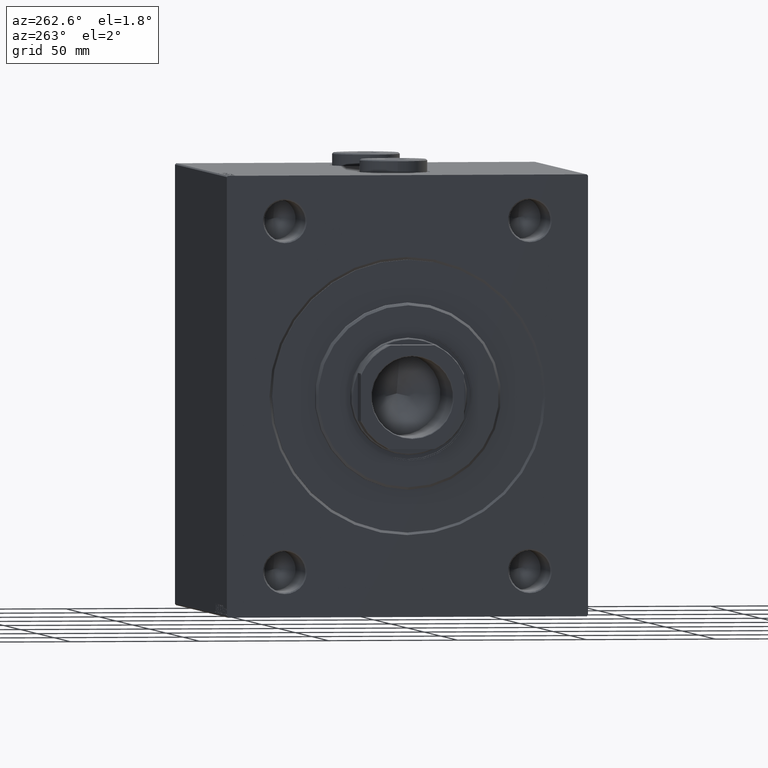
[diagram: clean part render]
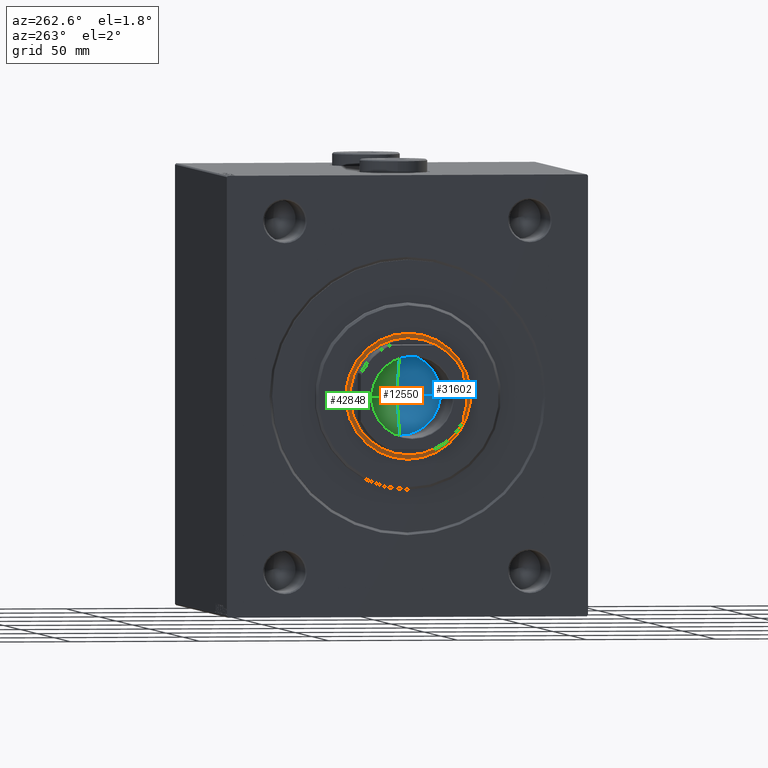
[diagram: same view with three faces highlighted in distinct colors, each labeled with its STEP entity id]
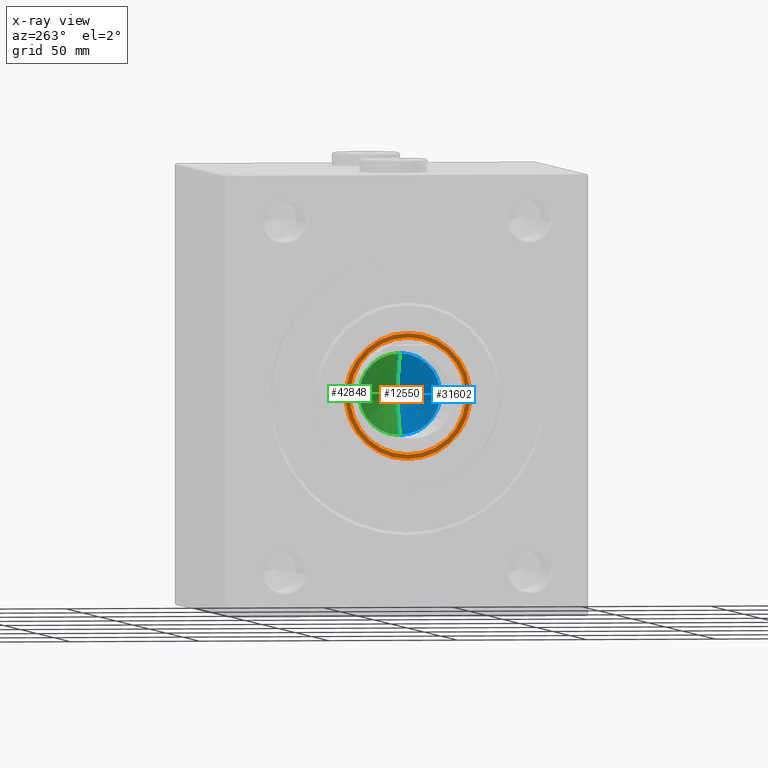
[diagram: x-ray of the same camera — body ghosted, the three highlighted faces saturated]
A machine part, auxiliary view with three faces highlighted in distinct colors.
The next image is the same camera in x-ray (body ghosted, the three faces saturated) — at least one of them is partly hidden behind the body in this view.
Their STEP definitions:

[orange] entity #12550 — the highlighted planar face has unit normal (-1, 0, 0).
#736 = ORIENTED_EDGE ( 'NONE', *, *, #41293, .T. ) ;
#1680 = ORIENTED_EDGE ( 'NONE', *, *, #15683, .F. ) ;
#2444 = CARTESIAN_POINT ( 'NONE',  ( 1.500000000000000000, 0.000000000000000000, 24.25000000000000000 ) ) ;
#3513 = DIRECTION ( 'NONE',  ( 0.000000000000000000, 0.000000000000000000, -1.000000000000000000 ) ) ;
#3679 = AXIS2_PLACEMENT_3D ( 'NONE', #15191, #22121, #33669 ) ;
#3720 = CIRCLE ( 'NONE', #10342, 22.50000000000000355 ) ;
#5304 = CIRCLE ( 'NONE', #31128, 24.25000000000000000 ) ;
#6645 = ORIENTED_EDGE ( 'NONE', *, *, #9437, .T. ) ;
#7432 = AXIS2_PLACEMENT_3D ( 'NONE', #17149, #42107, #38179 ) ;
#9437 = EDGE_CURVE ( 'NONE', #15836, #45142, #24323, .T. ) ;
#9802 = ORIENTED_EDGE ( 'NONE', *, *, #10398, .F. ) ;
#10199 = DIRECTION ( 'NONE',  ( 1.000000000000000000, 0.000000000000000000, 0.000000000000000000 ) ) ;
#10342 = AXIS2_PLACEMENT_3D ( 'NONE', #31691, #10199, #3513 ) ;
#10398 = EDGE_CURVE ( 'NONE', #33038, #40804, #3720, .T. ) ;
#11682 = DIRECTION ( 'NONE',  ( 0.000000000000000000, 0.000000000000000000, -1.000000000000000000 ) ) ;
#12550 = ADVANCED_FACE ( 'NONE', ( #28009, #24076 ), #34956, .T. ) ;
#14928 = CARTESIAN_POINT ( 'NONE',  ( 1.499999999999999556, 0.000000000000000000, 0.000000000000000000 ) ) ;
#15191 = CARTESIAN_POINT ( 'NONE',  ( 1.500000000000000000, 0.000000000000000000, 0.000000000000000000 ) ) ;
#15683 = EDGE_CURVE ( 'NONE', #40804, #33038, #36338, .T. ) ;
#15836 = VERTEX_POINT ( 'NONE', #30396 ) ;
#17048 = CARTESIAN_POINT ( 'NONE',  ( 1.500000000000000000, 0.000000000000000000, 0.000000000000000000 ) ) ;
#17136 = AXIS2_PLACEMENT_3D ( 'NONE', #14928, #36873, #11682 ) ;
#17149 = CARTESIAN_POINT ( 'NONE',  ( 1.500000000000000000, 0.000000000000000000, 0.000000000000000000 ) ) ;
#21382 = CARTESIAN_POINT ( 'NONE',  ( 1.499999999999999556, 2.755455298081545172E-15, 22.50000000000000355 ) ) ;
#22121 = DIRECTION ( 'NONE',  ( 1.000000000000000000, 0.000000000000000000, 0.000000000000000000 ) ) ;
#24076 = FACE_OUTER_BOUND ( 'NONE', #32888, .T. ) ;
#24323 = CIRCLE ( 'NONE', #3679, 24.25000000000000000 ) ;
#28009 = FACE_BOUND ( 'NONE', #43861, .T. ) ;
#30396 = CARTESIAN_POINT ( 'NONE',  ( 1.500000000000000000, 2.969768487932331287E-15, -24.25000000000000000 ) ) ;
#30699 = DIRECTION ( 'NONE',  ( 0.000000000000000000, 0.000000000000000000, -1.000000000000000000 ) ) ;
#31128 = AXIS2_PLACEMENT_3D ( 'NONE', #17048, #31151, #30699 ) ;
#31151 = DIRECTION ( 'NONE',  ( 1.000000000000000000, 0.000000000000000000, 0.000000000000000000 ) ) ;
#31691 = CARTESIAN_POINT ( 'NONE',  ( 1.499999999999999556, 0.000000000000000000, 0.000000000000000000 ) ) ;
#32888 = EDGE_LOOP ( 'NONE', ( #736, #6645 ) ) ;
#33038 = VERTEX_POINT ( 'NONE', #21382 ) ;
#33669 = DIRECTION ( 'NONE',  ( 0.000000000000000000, 0.000000000000000000, -1.000000000000000000 ) ) ;
#34956 = PLANE ( 'NONE',  #7432 ) ;
#36338 = CIRCLE ( 'NONE', #17136, 22.50000000000000355 ) ;
#36873 = DIRECTION ( 'NONE',  ( 1.000000000000000000, 0.000000000000000000, 0.000000000000000000 ) ) ;
#38179 = DIRECTION ( 'NONE',  ( 0.000000000000000000, 0.000000000000000000, -1.000000000000000000 ) ) ;
#40804 = VERTEX_POINT ( 'NONE', #40811 ) ;
#40811 = CARTESIAN_POINT ( 'NONE',  ( 1.499999999999999556, 0.000000000000000000, -22.50000000000000355 ) ) ;
#41293 = EDGE_CURVE ( 'NONE', #45142, #15836, #5304, .T. ) ;
#42107 = DIRECTION ( 'NONE',  ( 1.000000000000000000, 0.000000000000000000, 0.000000000000000000 ) ) ;
#43861 = EDGE_LOOP ( 'NONE', ( #1680, #9802 ) ) ;
#45142 = VERTEX_POINT ( 'NONE', #2444 ) ;

[blue] entity #31602 — the highlighted conical surface has half-angle 59 deg.
#3691 = CONICAL_SURFACE ( 'NONE', #18409, 15.74999999999999289, 1.029744258676653867 ) ;
#4033 = ORIENTED_EDGE ( 'NONE', *, *, #12092, .T. ) ;
#8184 = VECTOR ( 'NONE', #20850, 1000.000000000000000 ) ;
#10951 = ORIENTED_EDGE ( 'NONE', *, *, #18680, .T. ) ;
#11122 = AXIS2_PLACEMENT_3D ( 'NONE', #14696, #35756, #32719 ) ;
#12092 = EDGE_CURVE ( 'NONE', #23392, #12531, #40663, .T. ) ;
#12267 = DIRECTION ( 'NONE',  ( -0.000000000000000000, -0.000000000000000000, 1.000000000000000000 ) ) ;
#12489 = VERTEX_POINT ( 'NONE', #38650 ) ;
#12531 = VERTEX_POINT ( 'NONE', #23846 ) ;
#12772 = CARTESIAN_POINT ( 'NONE',  ( 15.74999999999999289, 0.000000000000000000, 106.0000000000000142 ) ) ;
#14696 = CARTESIAN_POINT ( 'NONE',  ( 0.000000000000000000, 0.000000000000000000, 106.0000000000000142 ) ) ;
#18409 = AXIS2_PLACEMENT_3D ( 'NONE', #43940, #12267, #37244 ) ;
#18680 = EDGE_CURVE ( 'NONE', #12489, #23392, #22467, .T. ) ;
#20850 = DIRECTION ( 'NONE',  ( 0.8571673007021120005, 0.000000000000000000, 0.5150380749100547106 ) ) ;
#22467 = LINE ( 'NONE', #37271, #41545 ) ;
#23392 = VERTEX_POINT ( 'NONE', #44463 ) ;
#23846 = CARTESIAN_POINT ( 'NONE',  ( 15.74999999999999289, 0.000000000000000000, 106.0000000000000142 ) ) ;
#29103 = ORIENTED_EDGE ( 'NONE', *, *, #39740, .F. ) ;
#29634 = DIRECTION ( 'NONE',  ( -0.8571673007021120005, 1.049727191138618326E-16, 0.5150380749100547106 ) ) ;
#31602 = ADVANCED_FACE ( 'NONE', ( #40240 ), #3691, .F. ) ;
#32719 = DIRECTION ( 'NONE',  ( 1.000000000000000000, 0.000000000000000000, 0.000000000000000000 ) ) ;
#35756 = DIRECTION ( 'NONE',  ( -0.000000000000000000, -0.000000000000000000, 1.000000000000000000 ) ) ;
#36816 = EDGE_LOOP ( 'NONE', ( #29103, #10951, #4033 ) ) ;
#37244 = DIRECTION ( 'NONE',  ( 1.000000000000000000, 0.000000000000000000, 0.000000000000000000 ) ) ;
#37271 = CARTESIAN_POINT ( 'NONE',  ( -15.74999999999999289, 1.928818708657080556E-15, 106.0000000000000142 ) ) ;
#38650 = CARTESIAN_POINT ( 'NONE',  ( -1.199718644317817648E-14, 0.000000000000000000, 96.53644525031593560 ) ) ;
#39740 = EDGE_CURVE ( 'NONE', #12489, #12531, #44445, .T. ) ;
#40240 = FACE_OUTER_BOUND ( 'NONE', #36816, .T. ) ;
#40663 = CIRCLE ( 'NONE', #11122, 15.74999999999999289 ) ;
#41545 = VECTOR ( 'NONE', #29634, 1000.000000000000000 ) ;
#43940 = CARTESIAN_POINT ( 'NONE',  ( 0.000000000000000000, 0.000000000000000000, 106.0000000000000142 ) ) ;
#44445 = LINE ( 'NONE', #12772, #8184 ) ;
#44463 = CARTESIAN_POINT ( 'NONE',  ( -15.74999999999999289, 1.928818708657080556E-15, 106.0000000000000142 ) ) ;

[green] entity #42848 — the highlighted conical surface has half-angle 59 deg.
#203 = DIRECTION ( 'NONE',  ( -0.000000000000000000, -0.000000000000000000, 1.000000000000000000 ) ) ;
#3762 = CARTESIAN_POINT ( 'NONE',  ( 0.000000000000000000, 0.000000000000000000, 106.0000000000000142 ) ) ;
#5337 = CONICAL_SURFACE ( 'NONE', #9015, 15.74999999999999289, 1.029744258676653867 ) ;
#6908 = CARTESIAN_POINT ( 'NONE',  ( 0.000000000000000000, 0.000000000000000000, 106.0000000000000142 ) ) ;
#8184 = VECTOR ( 'NONE', #20850, 1000.000000000000000 ) ;
#8277 = ORIENTED_EDGE ( 'NONE', *, *, #18680, .F. ) ;
#9015 = AXIS2_PLACEMENT_3D ( 'NONE', #6908, #203, #10592 ) ;
#10592 = DIRECTION ( 'NONE',  ( 1.000000000000000000, 0.000000000000000000, 0.000000000000000000 ) ) ;
#12489 = VERTEX_POINT ( 'NONE', #38650 ) ;
#12531 = VERTEX_POINT ( 'NONE', #23846 ) ;
#12772 = CARTESIAN_POINT ( 'NONE',  ( 15.74999999999999289, 0.000000000000000000, 106.0000000000000142 ) ) ;
#17127 = EDGE_CURVE ( 'NONE', #12531, #23392, #45222, .T. ) ;
#17842 = DIRECTION ( 'NONE',  ( -0.000000000000000000, -0.000000000000000000, 1.000000000000000000 ) ) ;
#18680 = EDGE_CURVE ( 'NONE', #12489, #23392, #22467, .T. ) ;
#20850 = DIRECTION ( 'NONE',  ( 0.8571673007021120005, 0.000000000000000000, 0.5150380749100547106 ) ) ;
#21088 = EDGE_LOOP ( 'NONE', ( #8277, #31027, #27619 ) ) ;
#22467 = LINE ( 'NONE', #37271, #41545 ) ;
#23392 = VERTEX_POINT ( 'NONE', #44463 ) ;
#23846 = CARTESIAN_POINT ( 'NONE',  ( 15.74999999999999289, 0.000000000000000000, 106.0000000000000142 ) ) ;
#27619 = ORIENTED_EDGE ( 'NONE', *, *, #17127, .T. ) ;
#29634 = DIRECTION ( 'NONE',  ( -0.8571673007021120005, 1.049727191138618326E-16, 0.5150380749100547106 ) ) ;
#31027 = ORIENTED_EDGE ( 'NONE', *, *, #39740, .T. ) ;
#31943 = DIRECTION ( 'NONE',  ( 1.000000000000000000, 0.000000000000000000, 0.000000000000000000 ) ) ;
#37271 = CARTESIAN_POINT ( 'NONE',  ( -15.74999999999999289, 1.928818708657080556E-15, 106.0000000000000142 ) ) ;
#38650 = CARTESIAN_POINT ( 'NONE',  ( -1.199718644317817648E-14, 0.000000000000000000, 96.53644525031593560 ) ) ;
#39740 = EDGE_CURVE ( 'NONE', #12489, #12531, #44445, .T. ) ;
#41517 = AXIS2_PLACEMENT_3D ( 'NONE', #3762, #17842, #31943 ) ;
#41545 = VECTOR ( 'NONE', #29634, 1000.000000000000000 ) ;
#42848 = ADVANCED_FACE ( 'NONE', ( #45508 ), #5337, .F. ) ;
#44445 = LINE ( 'NONE', #12772, #8184 ) ;
#44463 = CARTESIAN_POINT ( 'NONE',  ( -15.74999999999999289, 1.928818708657080556E-15, 106.0000000000000142 ) ) ;
#45222 = CIRCLE ( 'NONE', #41517, 15.74999999999999289 ) ;
#45508 = FACE_OUTER_BOUND ( 'NONE', #21088, .T. ) ;